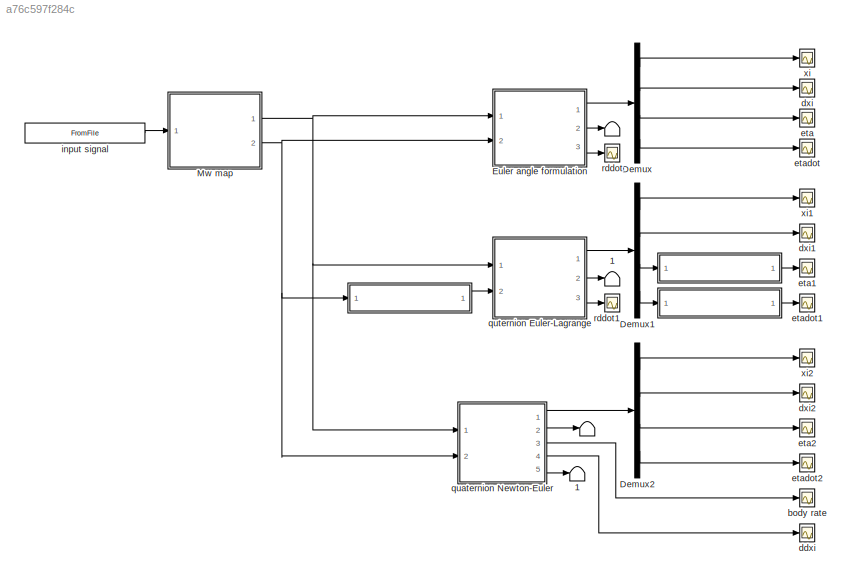
MODEL slx_a76c597f284c
KIND model
CONFIG AbsTol = auto
CONFIG FixedStep = auto
CONFIG MaxStep = auto
CONFIG MinStep = auto
CONFIG RelTol = 1e-3
CONFIG SampleTimeConstraint = Unconstrained
CONFIG Solver = VariableStepAuto
CONFIG SolverMode = Auto
CONFIG SolverName = VariableStepAuto
CONFIG StartTime = 0.0
CONFIG StopTime = 2.5
BLOCK [Terminator]  
BLOCK [Terminator]    
BLOCK [ModelReference]     
  ModelNameDialog = quaternion2euler.mdl
  ModelReferenceVersion = 1.92
  Ports = [1, 1]
  Variant = off
BLOCK [ModelReference]      
  ModelNameDialog = quaternion2euler.mdl
  ModelReferenceVersion = 1.92
  Ports = [1, 1]
  Variant = off
BLOCK [ModelReference]           
  ModelNameDialog = euler2quaternion.mdl
  ModelReferenceVersion = 1.5
  Ports = [1, 1]
  Variant = off
BLOCK [Terminator]    1
BLOCK [Terminator]  1
BLOCK [Demux] Demux
  DisplayOption = bar
  Outputs = [3,3,3,3]
  Ports = [1, 4]
BLOCK [Demux] Demux1
  DisplayOption = bar
  Outputs = [3,3,4,4]
  Ports = [1, 4]
BLOCK [Demux] Demux2
  DisplayOption = bar
  Outputs = [3,3,3,3]
  Ports = [1, 4]
BLOCK [ModelReference] Euler angle formulation
  ModelNameDialog = quadcopter_model_c_Euler.mdl
  ModelReferenceVersion = 1.167
  Ports = [2, 3]
  Variant = off
BLOCK [ModelReference] Mw map
  ModelNameDialog = omega2thrust.mdl
  ModelReferenceVersion = 1.3
  Ports = [1, 2]
  Variant = off
BLOCK [Scope] body rate
  Ports = [1]
  ScopeSpecificationString = Simulink.scopes.TimeScopeBlockCfg('CurrentConfiguration', extmgr.ConfigurationSet(extmgr.Configuration('Core','General UI',true),extmgr.Configuration('Core','Source UI',true),extmgr.Configuration('Sources','WiredSimulink',true,'DataLoggingVariableName','ScopeData1'),extmgr.Configuration('Visuals','Time Domain',true,'SerializedDisplays',{struct('MinYLimReal','-0.15093','MaxYLimReal','1.35705','YLab...<+1446ch>
BLOCK [Scope] ddxi
  Ports = [1]
  ScopeSpecificationString = Simulink.scopes.TimeScopeBlockCfg('CurrentConfiguration', extmgr.ConfigurationSet(extmgr.Configuration('Core','General UI',true),extmgr.Configuration('Core','Source UI',true),extmgr.Configuration('Sources','WiredSimulink',true,'DataLoggingVariableName','ScopeData2'),extmgr.Configuration('Visuals','Time Domain',true,'SerializedDisplays',{struct('MinYLimReal','-1.64653','MaxYLimReal','1.64803','YLab...<+1475ch>
BLOCK [Scope] dxi
  Ports = [1]
  ScopeSpecificationString = Simulink.scopes.TimeScopeBlockCfg('CurrentConfiguration', extmgr.ConfigurationSet(extmgr.Configuration('Core','General UI',true),extmgr.Configuration('Core','Source UI',true),extmgr.Configuration('Sources','WiredSimulink',true,'DataLoggingVariableName','ScopeData2','DataLoggingSaveFormat','Array','DataLoggingDecimation','1','DataLoggingDecimateData',true),extmgr.Configuration('Visuals','Time Domai...<+1536ch>
BLOCK [Scope] dxi1
  Ports = [1]
  ScopeSpecificationString = Simulink.scopes.TimeScopeBlockCfg('CurrentConfiguration', extmgr.ConfigurationSet(extmgr.Configuration('Core','General UI',true),extmgr.Configuration('Core','Source UI',true),extmgr.Configuration('Sources','WiredSimulink',true,'DataLoggingVariableName','ScopeData5'),extmgr.Configuration('Visuals','Time Domain',true,'SerializedDisplays',{struct('MinYLimReal','-0.72128','MaxYLimReal','0.47255','YLab...<+1424ch>
BLOCK [Scope] dxi2
  Ports = [1]
  ScopeSpecificationString = Simulink.scopes.TimeScopeBlockCfg('CurrentConfiguration', extmgr.ConfigurationSet(extmgr.Configuration('Core','General UI',true),extmgr.Configuration('Core','Source UI',true),extmgr.Configuration('Sources','WiredSimulink',true,'DataLoggingVariableName','ScopeData4'),extmgr.Configuration('Visuals','Time Domain',true,'SerializedDisplays',{struct('MinYLimReal','-2.78028','MaxYLimReal','2.14039','YLab...<+1443ch>
BLOCK [Scope] eta
  Ports = [1]
  ScopeSpecificationString = Simulink.scopes.TimeScopeBlockCfg('CurrentConfiguration', extmgr.ConfigurationSet(extmgr.Configuration('Core','General UI',true),extmgr.Configuration('Core','Source UI',true),extmgr.Configuration('Sources','WiredSimulink',true,'DataLoggingVariableName','ScopeData1','DataLoggingSaveFormat','Array','DataLoggingDecimation','1','DataLoggingDecimateData',true),extmgr.Configuration('Visuals','Time Domai...<+1557ch>
BLOCK [Scope] eta1
  Ports = [1]
  ScopeSpecificationString = Simulink.scopes.TimeScopeBlockCfg('CurrentConfiguration', extmgr.ConfigurationSet(extmgr.Configuration('Core','General UI',true),extmgr.Configuration('Core','Source UI',true),extmgr.Configuration('Sources','WiredSimulink',true,'DataLoggingVariableName','ScopeData2'),extmgr.Configuration('Visuals','Time Domain',true,'SerializedDisplays',{struct('MinYLimReal','-0.01713','MaxYLimReal','0.15415','YLab...<+1412ch>
BLOCK [Scope] eta2
  Ports = [1]
  ScopeSpecificationString = Simulink.scopes.TimeScopeBlockCfg('CurrentConfiguration', extmgr.ConfigurationSet(extmgr.Configuration('Core','General UI',true),extmgr.Configuration('Core','Source UI',true),extmgr.Configuration('Sources','WiredSimulink',true,'DataLoggingVariableName','ScopeData1'),extmgr.Configuration('Visuals','Time Domain',true,'SerializedDisplays',{struct('MinYLimReal','-0.03993','MaxYLimReal','0.35907','YLab...<+1470ch>
BLOCK [Scope] etadot
  Ports = [1]
  ScopeSpecificationString = Simulink.scopes.TimeScopeBlockCfg('CurrentConfiguration', extmgr.ConfigurationSet(extmgr.Configuration('Core','General UI',true),extmgr.Configuration('Core','Source UI',true),extmgr.Configuration('Sources','WiredSimulink',true,'DataLoggingVariableName','ScopeData1','DataLoggingSaveFormat','Array','DataLoggingDecimation','1','DataLoggingDecimateData',true),extmgr.Configuration('Visuals','Time Domai...<+1512ch>
BLOCK [Scope] etadot1
  Ports = [1]
  ScopeSpecificationString = Simulink.scopes.TimeScopeBlockCfg('CurrentConfiguration', extmgr.ConfigurationSet(extmgr.Configuration('Core','General UI',true),extmgr.Configuration('Core','Source UI',true),extmgr.Configuration('Sources','WiredSimulink',true,'DataLoggingVariableName','ScopeData3'),extmgr.Configuration('Visuals','Time Domain',true,'SerializedDisplays',{struct('MinYLimReal','-0.06993','MaxYLimReal','0.62936','YLab...<+1414ch>
BLOCK [Scope] etadot2
  Ports = [1]
  ScopeSpecificationString = Simulink.scopes.TimeScopeBlockCfg('CurrentConfiguration', extmgr.ConfigurationSet(extmgr.Configuration('Core','General UI',true),extmgr.Configuration('Core','Source UI',true),extmgr.Configuration('Sources','WiredSimulink',true,'DataLoggingVariableName','ScopeData2'),extmgr.Configuration('Visuals','Time Domain',true,'SerializedDisplays',{struct('MinYLimReal','-0.35925','MaxYLimReal','1.3726','YLabe...<+1418ch>
BLOCK [FromFile] input signal
  ExtrapolationBeforeFirstDataPoint = Hold first value
  FileName = example_omega
  SampleTime = 0.0001
BLOCK [ModelReference] quaternion Newton-Euler
  ModelNameDialog = quadcopter_model_c_NewtonEuler.mdl
  ModelReferenceVersion = 1.320
  Ports = [2, 5]
  Variant = off
BLOCK [ModelReference] quternion Euler-Lagrange
  ModelNameDialog = quadcopter_model_c_EulerLagrange.mdl
  ModelReferenceVersion = 1.239
  Ports = [2, 3]
  Variant = off
BLOCK [Scope] rddot
  Ports = [1]
  ScopeSpecificationString = Simulink.scopes.TimeScopeBlockCfg('CurrentConfiguration', extmgr.ConfigurationSet(extmgr.Configuration('Core','General UI',true),extmgr.Configuration('Core','Source UI',true),extmgr.Configuration('Sources','WiredSimulink',true,'DataLoggingVariableName','ScopeData1'),extmgr.Configuration('Visuals','Time Domain',true,'SerializedDisplays',{struct('MinYLimReal','-1.90831','MaxYLimReal','4.00424','YLab...<+1446ch>
BLOCK [Scope] rddot1
  Ports = [1]
  ScopeSpecificationString = C++SS(StrPVP('SaveName','ScopeData1'),StrPVP('SaveName','ScopeData2'),StrPVP('LimitDataPoints','on'),StrPVP('DataFormat','Array'),StrPVP('Decimation','1'),StrPVP('BlockParamSampleInput','off'))
BLOCK [Scope] xi
  Ports = [1]
  ScopeSpecificationString = Simulink.scopes.TimeScopeBlockCfg('CurrentConfiguration', extmgr.ConfigurationSet(extmgr.Configuration('Core','General UI',true),extmgr.Configuration('Core','Source UI',true),extmgr.Configuration('Sources','WiredSimulink',true,'DataLoggingVariableName','ScopeData2','DataLoggingSaveFormat','Array','DataLoggingDecimation','1','DataLoggingDecimateData',true),extmgr.Configuration('Visuals','Time Domai...<+1558ch>
BLOCK [Scope] xi1
  Ports = [1]
  ScopeSpecificationString = Simulink.scopes.TimeScopeBlockCfg('CurrentConfiguration', extmgr.ConfigurationSet(extmgr.Configuration('Core','General UI',true),extmgr.Configuration('Core','Source UI',true),extmgr.Configuration('Sources','WiredSimulink',true,'DataLoggingVariableName','ScopeData4'),extmgr.Configuration('Visuals','Time Domain',true,'SerializedDisplays',{struct('MinYLimReal','-0.61228','MaxYLimReal','0.31214','YLab...<+1424ch>
BLOCK [Scope] xi2
  Ports = [1]
  ScopeSpecificationString = Simulink.scopes.TimeScopeBlockCfg('CurrentConfiguration', extmgr.ConfigurationSet(extmgr.Configuration('Core','General UI',true),extmgr.Configuration('Core','Source UI',true),extmgr.Configuration('Sources','WiredSimulink',true,'DataLoggingVariableName','ScopeData3'),extmgr.Configuration('Visuals','Time Domain',true,'SerializedDisplays',{struct('MinYLimReal','-2.38917','MaxYLimReal','1.41343','YLab...<+1470ch>
LINE           :1 -> quternion Euler-Lagrange:2
LINE      :1 -> etadot1:1
LINE     :1 -> eta1:1
LINE Demux1:1 -> xi1:1
LINE Demux1:2 -> dxi1:1
LINE Demux1:3 ->     :1
LINE Demux1:4 ->      :1
LINE Demux2:1 -> xi2:1
LINE Demux2:2 -> dxi2:1
LINE Demux2:3 -> eta2:1
LINE Demux2:4 -> etadot2:1
LINE Demux:1 -> xi:1
LINE Demux:2 -> dxi:1
LINE Demux:3 -> eta:1
LINE Demux:4 -> etadot:1
LINE Euler angle formulation:1 -> Demux:1
LINE Euler angle formulation:2 ->  :1
LINE Euler angle formulation:3 -> rddot:1
NET Mw map:1 -> Euler angle formulation:1, quaternion Newton-Euler:1, quternion Euler-Lagrange:1
NET Mw map:2 ->           :1, Euler angle formulation:2, quaternion Newton-Euler:2
LINE input signal:1 -> Mw map:1
LINE quaternion Newton-Euler:1 -> Demux2:1
LINE quaternion Newton-Euler:2 ->    :1
LINE quaternion Newton-Euler:3 -> body rate:1
LINE quaternion Newton-Euler:4 -> ddxi:1
LINE quaternion Newton-Euler:5 ->    1:1
LINE quternion Euler-Lagrange:1 -> Demux1:1
LINE quternion Euler-Lagrange:2 ->  1:1
LINE quternion Euler-Lagrange:3 -> rddot1:1
note: NET lines group one-source signal fan-out (src -> all destinations, sorted); 1:1 wires keep LINE
